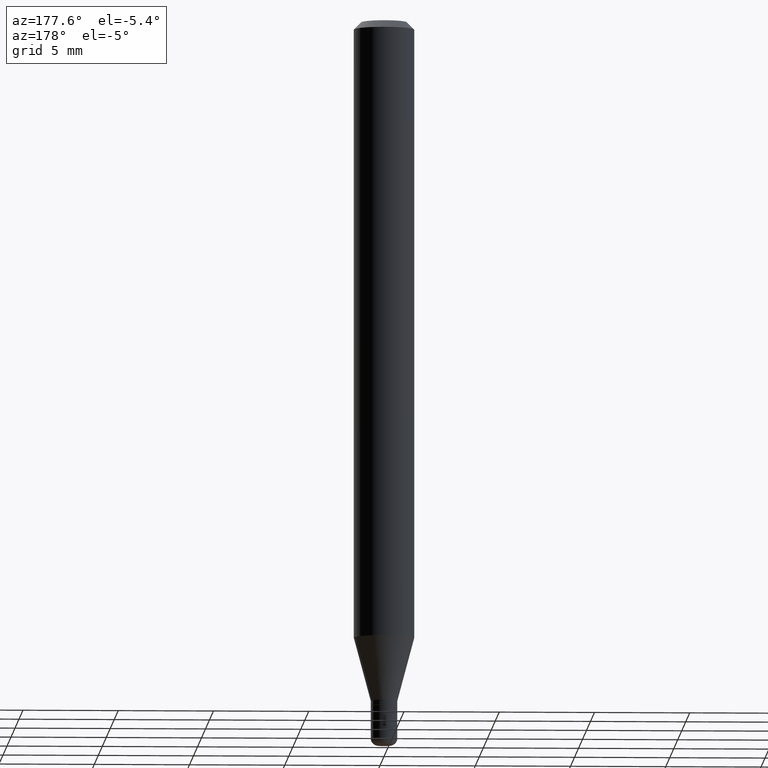
[diagram: clean part render]
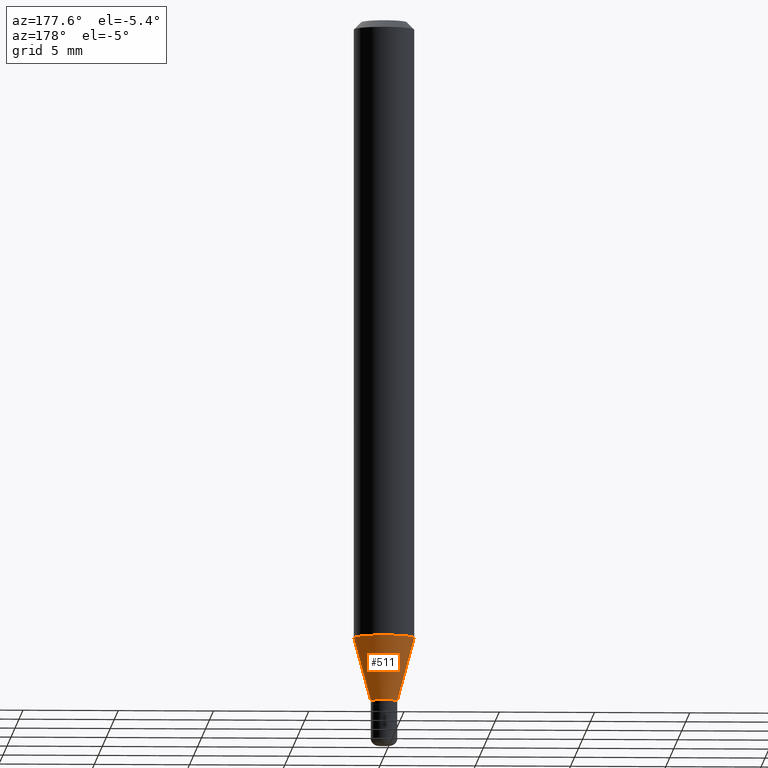
[diagram: same view with one face highlighted and labeled with its STEP entity id]
A machine part, auxiliary view. The second image highlights one B-rep face of the part: STEP entity #511.
In plain terms, the highlighted conical surface has half-angle 15 deg.
Its self-contained STEP definition (entity closure, byte-faithful):
#62 = VERTEX_POINT ( 'NONE', #272 ) ;
#63 = DIRECTION ( 'NONE',  ( 1.000000000000000000, -6.982962677686262766E-15, 0.000000000000000000 ) ) ;
#64 = VECTOR ( 'NONE', #197, 39.37007874015748854 ) ;
#66 = CONICAL_SURFACE ( 'NONE', #195, 0.02750000000000000708, 0.2617993877991498519 ) ;
#76 = DIRECTION ( 'NONE',  ( -2.445468806185136597E-29, 3.491481338843145583E-15, 1.000000000000000000 ) ) ;
#85 = DIRECTION ( 'NONE',  ( 0.2588190451025211281, 1.565188264969622954E-15, 0.9659258262890679791 ) ) ;
#102 = EDGE_CURVE ( 'NONE', #371, #62, #401, .T. ) ;
#117 = DIRECTION ( 'NONE',  ( -2.445468806185136597E-29, 3.491481338843145583E-15, 1.000000000000000000 ) ) ;
#148 = CARTESIAN_POINT ( 'NONE',  ( 3.440774610302487541E-29, -4.912514243752305891E-15, -1.407000000000000028 ) ) ;
#178 = AXIS2_PLACEMENT_3D ( 'NONE', #211, #369, #63 ) ;
#182 = EDGE_LOOP ( 'NONE', ( #212, #298, #290, #220 ) ) ;
#195 = AXIS2_PLACEMENT_3D ( 'NONE', #271, #76, #234 ) ;
#197 = DIRECTION ( 'NONE',  ( -0.2588190451025211281, 5.211531920934547886E-15, 0.9659258262890679791 ) ) ;
#200 = LINE ( 'NONE', #437, #443 ) ;
#203 = CARTESIAN_POINT ( 'NONE',  ( -0.02750000000000000708, -4.364738262031039467E-15, -1.407000000000000028 ) ) ;
#211 = CARTESIAN_POINT ( 'NONE',  ( 3.121343126147216904E-29, -4.456450742493864567E-15, -1.276378221735089635 ) ) ;
#212 = ORIENTED_EDGE ( 'NONE', *, *, #424, .T. ) ;
#215 = DIRECTION ( 'NONE',  ( 1.000000000000000000, -6.982962677686277755E-15, 0.000000000000000000 ) ) ;
#220 = ORIENTED_EDGE ( 'NONE', *, *, #486, .F. ) ;
#229 = CIRCLE ( 'NONE', #178, 0.06250000000000000000 ) ;
#234 = DIRECTION ( 'NONE',  ( 1.000000000000000000, -6.982962677686277755E-15, 0.000000000000000000 ) ) ;
#271 = CARTESIAN_POINT ( 'NONE',  ( 3.440774610302487541E-29, -4.912514243752305891E-15, -1.407000000000000028 ) ) ;
#272 = CARTESIAN_POINT ( 'NONE',  ( -0.06250000000000000000, -4.012361532643800373E-15, -1.276378221735089635 ) ) ;
#287 = EDGE_CURVE ( 'NONE', #460, #62, #229, .T. ) ;
#290 = ORIENTED_EDGE ( 'NONE', *, *, #287, .F. ) ;
#298 = ORIENTED_EDGE ( 'NONE', *, *, #102, .T. ) ;
#325 = VERTEX_POINT ( 'NONE', #327 ) ;
#327 = CARTESIAN_POINT ( 'NONE',  ( 0.02750000000000000708, -5.104545717388678383E-15, -1.407000000000000028 ) ) ;
#353 = CARTESIAN_POINT ( 'NONE',  ( 0.06250000000000000000, -4.892885909849255447E-15, -1.276378221735089635 ) ) ;
#369 = DIRECTION ( 'NONE',  ( -2.445468806185136597E-29, 3.491481338843145583E-15, 1.000000000000000000 ) ) ;
#371 = VERTEX_POINT ( 'NONE', #203 ) ;
#391 = CARTESIAN_POINT ( 'NONE',  ( -0.02750000000000000708, -4.717114991418277772E-15, -1.407000000000000028 ) ) ;
#401 = LINE ( 'NONE', #391, #64 ) ;
#424 = EDGE_CURVE ( 'NONE', #325, #371, #428, .T. ) ;
#428 = CIRCLE ( 'NONE', #458, 0.02750000000000000708 ) ;
#437 = CARTESIAN_POINT ( 'NONE',  ( 0.02750000000000000708, -5.104545717388678383E-15, -1.407000000000000028 ) ) ;
#443 = VECTOR ( 'NONE', #85, 39.37007874015748854 ) ;
#458 = AXIS2_PLACEMENT_3D ( 'NONE', #148, #117, #215 ) ;
#460 = VERTEX_POINT ( 'NONE', #353 ) ;
#486 = EDGE_CURVE ( 'NONE', #325, #460, #200, .T. ) ;
#511 = ADVANCED_FACE ( 'NONE', ( #514 ), #66, .T. ) ;
#514 = FACE_OUTER_BOUND ( 'NONE', #182, .T. ) ;